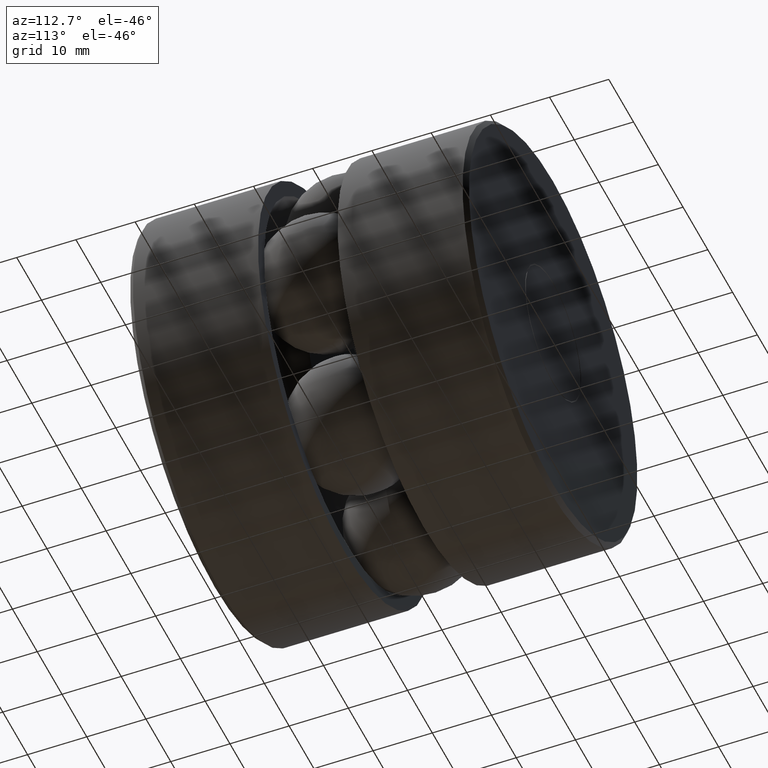
[diagram: clean part render]
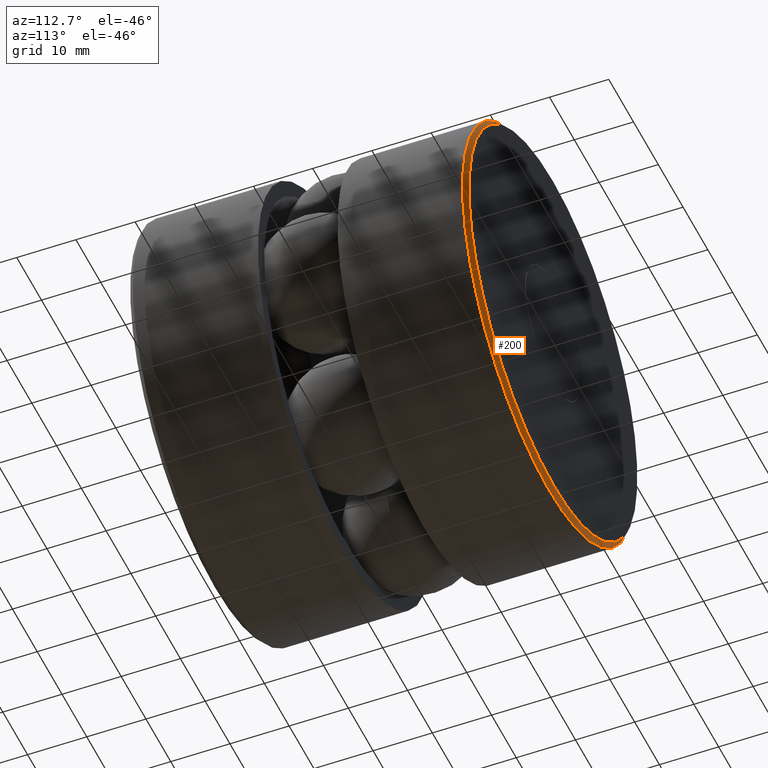
[diagram: same view with one face highlighted and labeled with its STEP entity id]
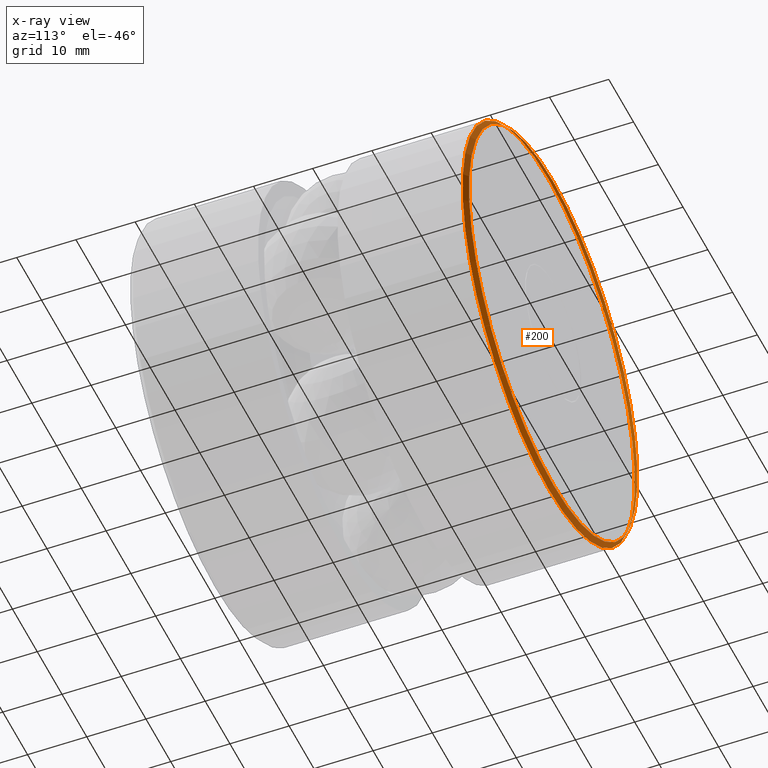
[diagram: x-ray of the same camera — body ghosted, the highlighted face saturated]
A machine part, auxiliary view. The second image highlights one B-rep face of the part: STEP entity #200.
The next image is the same camera in x-ray: the body ghosted, the highlighted face saturated — about 0% of this face is hidden behind the body in this view.
In plain terms, the highlighted conical surface has half-angle 45 deg.
Its self-contained STEP definition (entity closure, byte-faithful):
#16 = AXIS2_PLACEMENT_3D ( 'NONE', #41, #150, #56 ) ;
#41 = CARTESIAN_POINT ( 'NONE',  ( 0.0000000000000000000, 2.249999999999999600, 0.0000000000000000000 ) ) ;
#50 = CARTESIAN_POINT ( 'NONE',  ( 0.0000000000000000000, 2.219999999999999800, 0.0000000000000000000 ) ) ;
#56 = DIRECTION ( 'NONE',  ( 0.0000000000000000000, 0.0000000000000000000, -1.000000000000000000 ) ) ;
#101 = EDGE_LOOP ( 'NONE', ( #138 ) ) ;
#129 = EDGE_CURVE ( 'NONE', #310, #310, #429, .T. ) ;
#137 = DIRECTION ( 'NONE',  ( -0.0000000000000000000, 1.000000000000000000, -0.0000000000000000000 ) ) ;
#138 = ORIENTED_EDGE ( 'NONE', *, *, #129, .F. ) ;
#142 = CARTESIAN_POINT ( 'NONE',  ( 0.0000000000000000000, 2.249999999999999600, 0.0000000000000000000 ) ) ;
#150 = DIRECTION ( 'NONE',  ( 0.0000000000000000000, -1.000000000000000000, 0.0000000000000000000 ) ) ;
#200 = ADVANCED_FACE ( 'NONE', ( #240, #351 ), #348, .T. ) ;
#240 = FACE_OUTER_BOUND ( 'NONE', #388, .T. ) ;
#292 = ORIENTED_EDGE ( 'NONE', *, *, #466, .T. ) ;
#310 = VERTEX_POINT ( 'NONE', #463 ) ;
#343 = AXIS2_PLACEMENT_3D ( 'NONE', #50, #434, #419 ) ;
#348 = CONICAL_SURFACE ( 'NONE', #16, 1.338000000000000300, 0.7853981633974391800 ) ;
#351 = FACE_BOUND ( 'NONE', #101, .T. ) ;
#388 = EDGE_LOOP ( 'NONE', ( #292 ) ) ;
#408 = DIRECTION ( 'NONE',  ( 0.0000000000000000000, 0.0000000000000000000, 1.000000000000000000 ) ) ;
#419 = DIRECTION ( 'NONE',  ( 0.0000000000000000000, 0.0000000000000000000, 1.000000000000000000 ) ) ;
#425 = CIRCLE ( 'NONE', #343, 1.368000000000000100 ) ;
#428 = AXIS2_PLACEMENT_3D ( 'NONE', #142, #137, #408 ) ;
#429 = CIRCLE ( 'NONE', #428, 1.338000000000000300 ) ;
#434 = DIRECTION ( 'NONE',  ( -0.0000000000000000000, 1.000000000000000000, -0.0000000000000000000 ) ) ;
#463 = CARTESIAN_POINT ( 'NONE',  ( 0.0000000000000000000, 2.249999999999999600, 1.338000000000000300 ) ) ;
#466 = EDGE_CURVE ( 'NONE', #509, #509, #425, .T. ) ;
#503 = CARTESIAN_POINT ( 'NONE',  ( 0.0000000000000000000, 2.219999999999999800, 1.368000000000000100 ) ) ;
#509 = VERTEX_POINT ( 'NONE', #503 ) ;